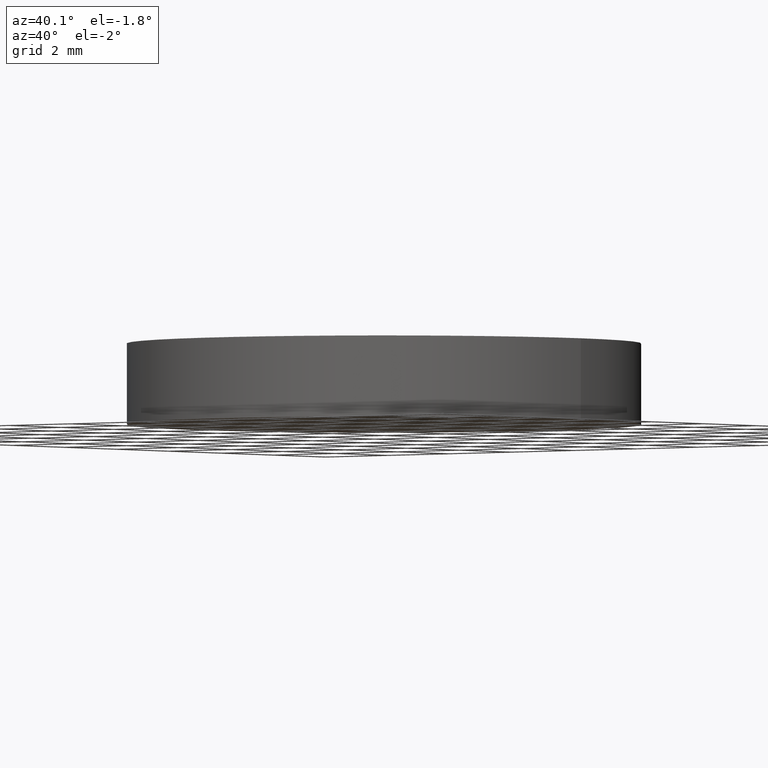
[diagram: clean part render]
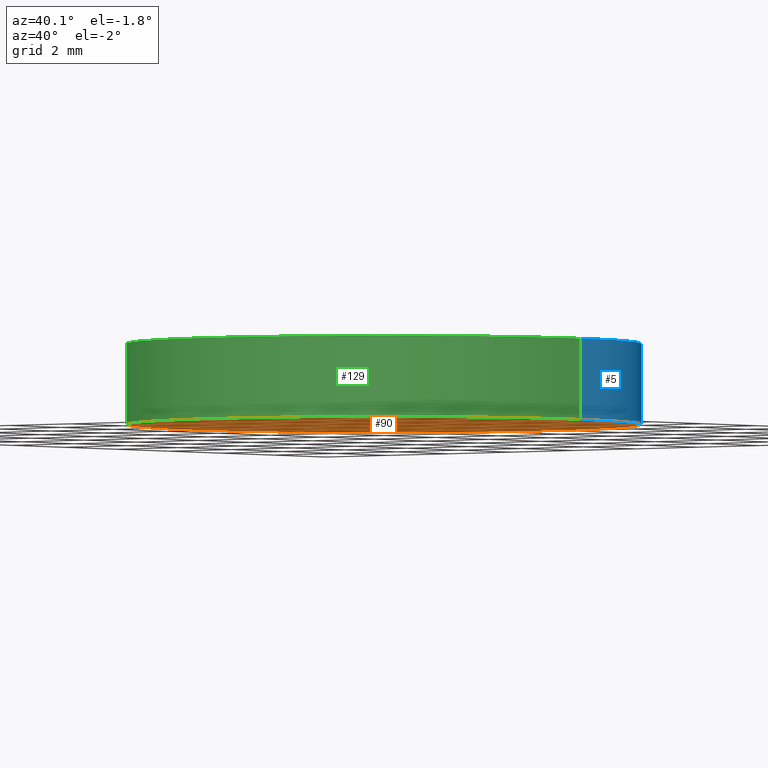
[diagram: same view with three faces highlighted in distinct colors, each labeled with its STEP entity id]
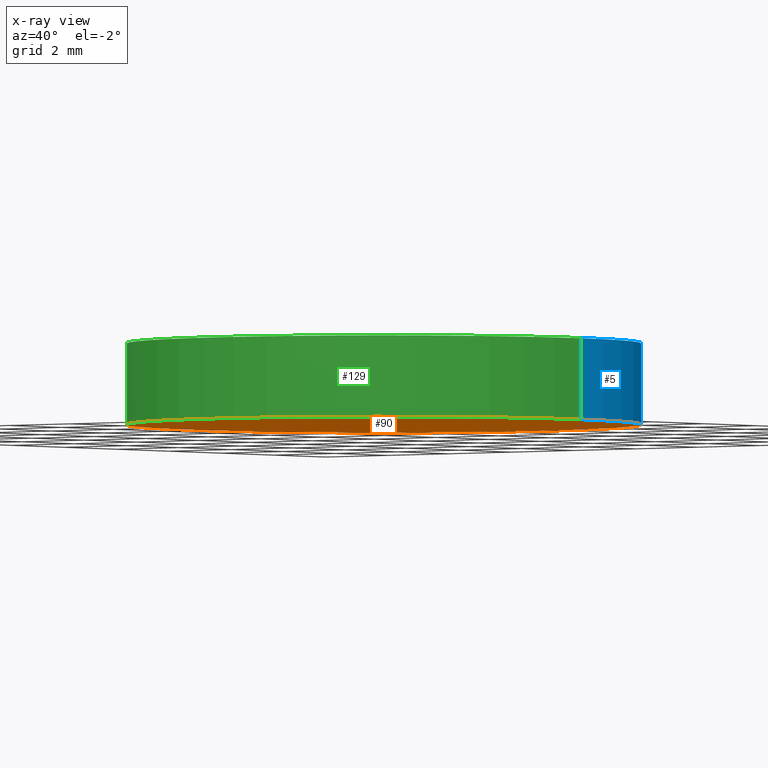
[diagram: x-ray of the same camera — body ghosted, the three highlighted faces saturated]
A machine part, auxiliary view with three faces highlighted in distinct colors.
The next image is the same camera in x-ray (body ghosted, the three faces saturated) — at least one of them is partly hidden behind the body in this view.
Their STEP definitions:

[orange] entity #90 — the highlighted planar face has unit normal (0, 0, 1).
#2 = EDGE_LOOP ( 'NONE', ( #102, #8 ) ) ;
#8 = ORIENTED_EDGE ( 'NONE', *, *, #15, .F. ) ;
#15 = EDGE_CURVE ( 'NONE', #138, #111, #31, .T. ) ;
#21 = DIRECTION ( 'NONE',  ( 0.0000000000000000000, 0.0000000000000000000, 1.000000000000000000 ) ) ;
#25 = CARTESIAN_POINT ( 'NONE',  ( 6.349999999999999600, 7.776507174585692200E-016, 0.0000000000000000000 ) ) ;
#31 = CIRCLE ( 'NONE', #67, 6.349999999999999600 ) ;
#52 = DIRECTION ( 'NONE',  ( 0.0000000000000000000, 0.0000000000000000000, 1.000000000000000000 ) ) ;
#56 = EDGE_CURVE ( 'NONE', #111, #138, #114, .T. ) ;
#64 = FACE_OUTER_BOUND ( 'NONE', #2, .T. ) ;
#67 = AXIS2_PLACEMENT_3D ( 'NONE', #82, #21, #92 ) ;
#74 = DIRECTION ( 'NONE',  ( 0.0000000000000000000, 0.0000000000000000000, 1.000000000000000000 ) ) ;
#82 = CARTESIAN_POINT ( 'NONE',  ( 0.0000000000000000000, 0.0000000000000000000, 0.0000000000000000000 ) ) ;
#85 = CARTESIAN_POINT ( 'NONE',  ( -6.349999999999999600, 0.0000000000000000000, 0.0000000000000000000 ) ) ;
#90 = ADVANCED_FACE ( 'NONE', ( #64 ), #112, .F. ) ;
#92 = DIRECTION ( 'NONE',  ( 1.000000000000000000, 0.0000000000000000000, 0.0000000000000000000 ) ) ;
#99 = DIRECTION ( 'NONE',  ( 1.000000000000000000, 0.0000000000000000000, 0.0000000000000000000 ) ) ;
#102 = ORIENTED_EDGE ( 'NONE', *, *, #56, .F. ) ;
#107 = AXIS2_PLACEMENT_3D ( 'NONE', #108, #52, #120 ) ;
#108 = CARTESIAN_POINT ( 'NONE',  ( 0.0000000000000000000, 0.0000000000000000000, 0.0000000000000000000 ) ) ;
#110 = AXIS2_PLACEMENT_3D ( 'NONE', #137, #74, #99 ) ;
#111 = VERTEX_POINT ( 'NONE', #85 ) ;
#112 = PLANE ( 'NONE',  #107 ) ;
#114 = CIRCLE ( 'NONE', #110, 6.349999999999999600 ) ;
#120 = DIRECTION ( 'NONE',  ( 1.000000000000000000, 0.0000000000000000000, -0.0000000000000000000 ) ) ;
#137 = CARTESIAN_POINT ( 'NONE',  ( 0.0000000000000000000, 0.0000000000000000000, 0.0000000000000000000 ) ) ;
#138 = VERTEX_POINT ( 'NONE', #25 ) ;

[blue] entity #5 — the highlighted cylindrical surface (partial cylindrical patch) has radius 6.35 mm, axis along (-0, -0, -1).
#4 = EDGE_CURVE ( 'NONE', #79, #111, #70, .T. ) ;
#5 = ADVANCED_FACE ( 'NONE', ( #84 ), #36, .T. ) ;
#7 = CARTESIAN_POINT ( 'NONE',  ( 0.0000000000000000000, 0.0000000000000000000, 2.000000000000000000 ) ) ;
#9 = DIRECTION ( 'NONE',  ( 1.000000000000000000, 0.0000000000000000000, 0.0000000000000000000 ) ) ;
#15 = EDGE_CURVE ( 'NONE', #138, #111, #31, .T. ) ;
#17 = AXIS2_PLACEMENT_3D ( 'NONE', #136, #73, #9 ) ;
#21 = DIRECTION ( 'NONE',  ( 0.0000000000000000000, 0.0000000000000000000, 1.000000000000000000 ) ) ;
#25 = CARTESIAN_POINT ( 'NONE',  ( 6.349999999999999600, 7.776507174585692200E-016, 0.0000000000000000000 ) ) ;
#28 = ORIENTED_EDGE ( 'NONE', *, *, #29, .F. ) ;
#29 = EDGE_CURVE ( 'NONE', #89, #79, #47, .T. ) ;
#31 = CIRCLE ( 'NONE', #67, 6.349999999999999600 ) ;
#36 = CYLINDRICAL_SURFACE ( 'NONE', #88, 6.349999999999999600 ) ;
#38 = VECTOR ( 'NONE', #72, 1000.000000000000000 ) ;
#40 = EDGE_CURVE ( 'NONE', #89, #138, #122, .T. ) ;
#43 = CARTESIAN_POINT ( 'NONE',  ( 6.349999999999999600, 7.776507174585692200E-016, 2.000000000000000000 ) ) ;
#47 = CIRCLE ( 'NONE', #17, 6.349999999999999600 ) ;
#60 = DIRECTION ( 'NONE',  ( -0.0000000000000000000, -0.0000000000000000000, -1.000000000000000000 ) ) ;
#61 = CARTESIAN_POINT ( 'NONE',  ( 6.349999999999999600, 7.776507174585692200E-016, 2.000000000000000000 ) ) ;
#62 = ORIENTED_EDGE ( 'NONE', *, *, #4, .F. ) ;
#67 = AXIS2_PLACEMENT_3D ( 'NONE', #82, #21, #92 ) ;
#68 = VECTOR ( 'NONE', #60, 1000.000000000000000 ) ;
#70 = LINE ( 'NONE', #133, #68 ) ;
#71 = DIRECTION ( 'NONE',  ( -1.000000000000000000, 0.0000000000000000000, 0.0000000000000000000 ) ) ;
#72 = DIRECTION ( 'NONE',  ( -0.0000000000000000000, -0.0000000000000000000, -1.000000000000000000 ) ) ;
#73 = DIRECTION ( 'NONE',  ( 0.0000000000000000000, 0.0000000000000000000, 1.000000000000000000 ) ) ;
#79 = VERTEX_POINT ( 'NONE', #123 ) ;
#82 = CARTESIAN_POINT ( 'NONE',  ( 0.0000000000000000000, 0.0000000000000000000, 0.0000000000000000000 ) ) ;
#84 = FACE_OUTER_BOUND ( 'NONE', #121, .T. ) ;
#85 = CARTESIAN_POINT ( 'NONE',  ( -6.349999999999999600, 0.0000000000000000000, 0.0000000000000000000 ) ) ;
#88 = AXIS2_PLACEMENT_3D ( 'NONE', #7, #119, #71 ) ;
#89 = VERTEX_POINT ( 'NONE', #43 ) ;
#92 = DIRECTION ( 'NONE',  ( 1.000000000000000000, 0.0000000000000000000, 0.0000000000000000000 ) ) ;
#96 = ORIENTED_EDGE ( 'NONE', *, *, #40, .T. ) ;
#111 = VERTEX_POINT ( 'NONE', #85 ) ;
#119 = DIRECTION ( 'NONE',  ( -0.0000000000000000000, -0.0000000000000000000, -1.000000000000000000 ) ) ;
#121 = EDGE_LOOP ( 'NONE', ( #28, #96, #132, #62 ) ) ;
#122 = LINE ( 'NONE', #61, #38 ) ;
#123 = CARTESIAN_POINT ( 'NONE',  ( -6.349999999999999600, 0.0000000000000000000, 2.000000000000000000 ) ) ;
#132 = ORIENTED_EDGE ( 'NONE', *, *, #15, .T. ) ;
#133 = CARTESIAN_POINT ( 'NONE',  ( -6.349999999999999600, 0.0000000000000000000, 2.000000000000000000 ) ) ;
#136 = CARTESIAN_POINT ( 'NONE',  ( 0.0000000000000000000, 0.0000000000000000000, 2.000000000000000000 ) ) ;
#138 = VERTEX_POINT ( 'NONE', #25 ) ;

[green] entity #129 — the highlighted cylindrical surface (partial cylindrical patch) has radius 6.35 mm, axis along (-0, -0, -1).
#4 = EDGE_CURVE ( 'NONE', #79, #111, #70, .T. ) ;
#11 = DIRECTION ( 'NONE',  ( -1.000000000000000000, 0.0000000000000000000, 0.0000000000000000000 ) ) ;
#12 = AXIS2_PLACEMENT_3D ( 'NONE', #63, #23, #11 ) ;
#18 = CYLINDRICAL_SURFACE ( 'NONE', #12, 6.349999999999999600 ) ;
#19 = EDGE_CURVE ( 'NONE', #79, #89, #41, .T. ) ;
#23 = DIRECTION ( 'NONE',  ( -0.0000000000000000000, -0.0000000000000000000, -1.000000000000000000 ) ) ;
#25 = CARTESIAN_POINT ( 'NONE',  ( 6.349999999999999600, 7.776507174585692200E-016, 0.0000000000000000000 ) ) ;
#26 = AXIS2_PLACEMENT_3D ( 'NONE', #42, #109, #53 ) ;
#38 = VECTOR ( 'NONE', #72, 1000.000000000000000 ) ;
#40 = EDGE_CURVE ( 'NONE', #89, #138, #122, .T. ) ;
#41 = CIRCLE ( 'NONE', #26, 6.349999999999999600 ) ;
#42 = CARTESIAN_POINT ( 'NONE',  ( 0.0000000000000000000, 0.0000000000000000000, 2.000000000000000000 ) ) ;
#43 = CARTESIAN_POINT ( 'NONE',  ( 6.349999999999999600, 7.776507174585692200E-016, 2.000000000000000000 ) ) ;
#51 = EDGE_LOOP ( 'NONE', ( #105, #106, #93, #117 ) ) ;
#53 = DIRECTION ( 'NONE',  ( 1.000000000000000000, 0.0000000000000000000, 0.0000000000000000000 ) ) ;
#56 = EDGE_CURVE ( 'NONE', #111, #138, #114, .T. ) ;
#60 = DIRECTION ( 'NONE',  ( -0.0000000000000000000, -0.0000000000000000000, -1.000000000000000000 ) ) ;
#61 = CARTESIAN_POINT ( 'NONE',  ( 6.349999999999999600, 7.776507174585692200E-016, 2.000000000000000000 ) ) ;
#63 = CARTESIAN_POINT ( 'NONE',  ( 0.0000000000000000000, 0.0000000000000000000, 2.000000000000000000 ) ) ;
#68 = VECTOR ( 'NONE', #60, 1000.000000000000000 ) ;
#70 = LINE ( 'NONE', #133, #68 ) ;
#72 = DIRECTION ( 'NONE',  ( -0.0000000000000000000, -0.0000000000000000000, -1.000000000000000000 ) ) ;
#74 = DIRECTION ( 'NONE',  ( 0.0000000000000000000, 0.0000000000000000000, 1.000000000000000000 ) ) ;
#77 = FACE_OUTER_BOUND ( 'NONE', #51, .T. ) ;
#79 = VERTEX_POINT ( 'NONE', #123 ) ;
#85 = CARTESIAN_POINT ( 'NONE',  ( -6.349999999999999600, 0.0000000000000000000, 0.0000000000000000000 ) ) ;
#89 = VERTEX_POINT ( 'NONE', #43 ) ;
#93 = ORIENTED_EDGE ( 'NONE', *, *, #4, .T. ) ;
#99 = DIRECTION ( 'NONE',  ( 1.000000000000000000, 0.0000000000000000000, 0.0000000000000000000 ) ) ;
#105 = ORIENTED_EDGE ( 'NONE', *, *, #40, .F. ) ;
#106 = ORIENTED_EDGE ( 'NONE', *, *, #19, .F. ) ;
#109 = DIRECTION ( 'NONE',  ( 0.0000000000000000000, 0.0000000000000000000, 1.000000000000000000 ) ) ;
#110 = AXIS2_PLACEMENT_3D ( 'NONE', #137, #74, #99 ) ;
#111 = VERTEX_POINT ( 'NONE', #85 ) ;
#114 = CIRCLE ( 'NONE', #110, 6.349999999999999600 ) ;
#117 = ORIENTED_EDGE ( 'NONE', *, *, #56, .T. ) ;
#122 = LINE ( 'NONE', #61, #38 ) ;
#123 = CARTESIAN_POINT ( 'NONE',  ( -6.349999999999999600, 0.0000000000000000000, 2.000000000000000000 ) ) ;
#129 = ADVANCED_FACE ( 'NONE', ( #77 ), #18, .T. ) ;
#133 = CARTESIAN_POINT ( 'NONE',  ( -6.349999999999999600, 0.0000000000000000000, 2.000000000000000000 ) ) ;
#137 = CARTESIAN_POINT ( 'NONE',  ( 0.0000000000000000000, 0.0000000000000000000, 0.0000000000000000000 ) ) ;
#138 = VERTEX_POINT ( 'NONE', #25 ) ;